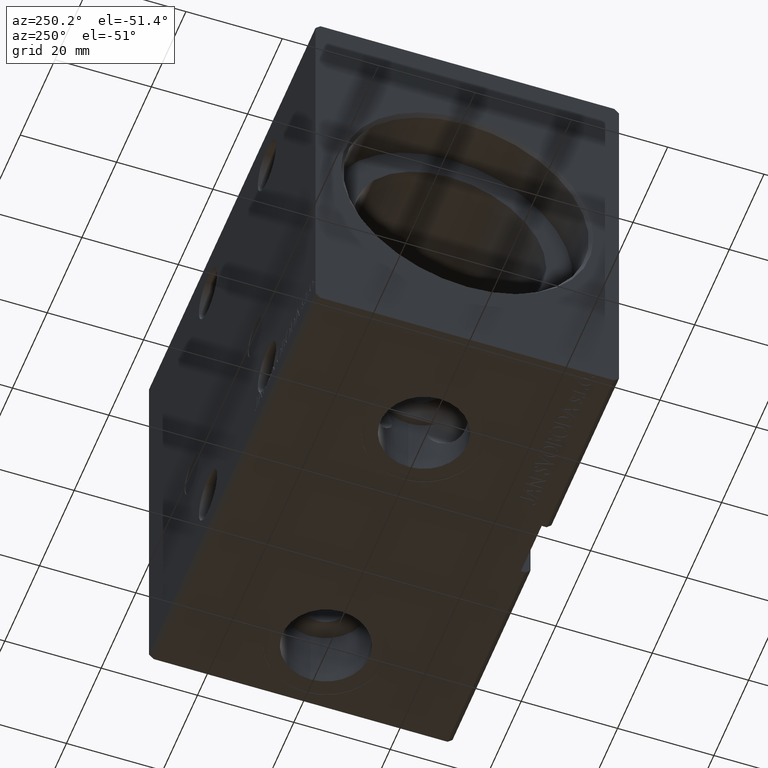
[diagram: clean part render]
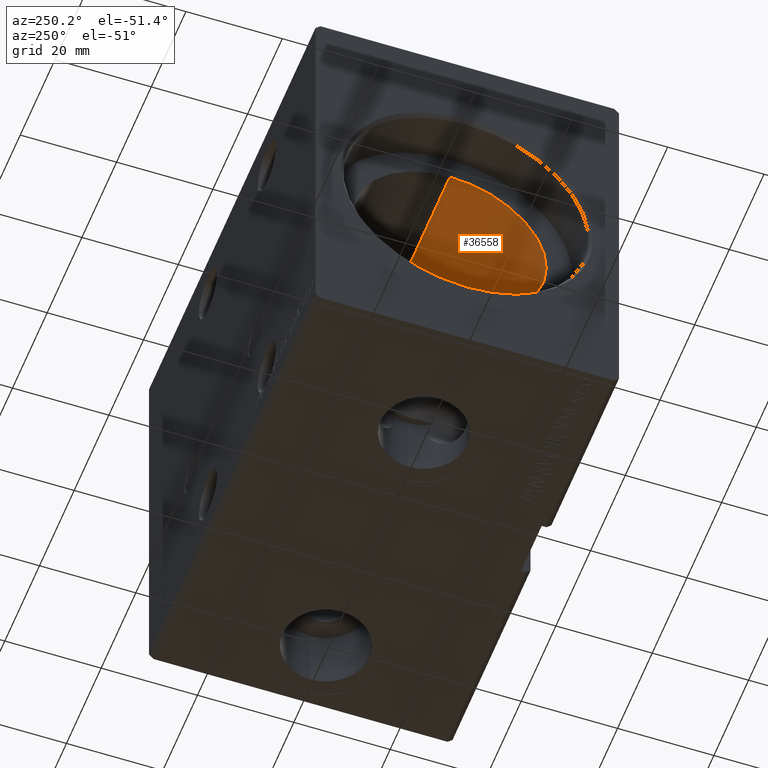
[diagram: same view with one face highlighted and labeled with its STEP entity id]
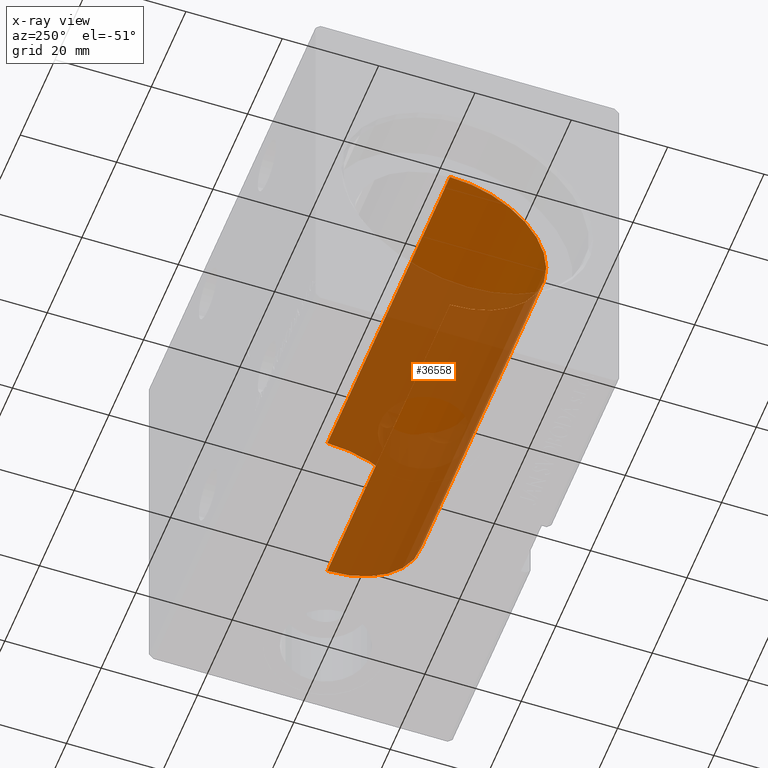
[diagram: x-ray of the same camera — body ghosted, the highlighted face saturated]
A machine part, auxiliary view. The second image highlights one B-rep face of the part: STEP entity #36558.
The next image is the same camera in x-ray: the body ghosted, the highlighted face saturated — about 72% of this face is hidden behind the body in this view.
In plain terms, the highlighted cylindrical surface (partial cylindrical patch) has radius 20 mm, axis along (-1, -0, -0).
Its self-contained STEP definition (entity closure, byte-faithful):
#545 = ORIENTED_EDGE ( 'NONE', *, *, #6763, .F. ) ;
#1203 = VERTEX_POINT ( 'NONE', #35179 ) ;
#1524 = CARTESIAN_POINT ( 'NONE',  ( 80.70000000000000284, 2.449293598294706513E-15, -20.00000000000000000 ) ) ;
#2459 = VECTOR ( 'NONE', #15867, 1000.000000000000000 ) ;
#2948 = CIRCLE ( 'NONE', #19551, 20.00000000000000000 ) ;
#3028 = LINE ( 'NONE', #3233, #2459 ) ;
#3233 = CARTESIAN_POINT ( 'NONE',  ( 80.70000000000000284, 2.449293598294706513E-15, -20.00000000000000000 ) ) ;
#3381 = EDGE_CURVE ( 'NONE', #1203, #31646, #2948, .T. ) ;
#5255 = DIRECTION ( 'NONE',  ( -1.000000000000000000, -0.000000000000000000, -0.000000000000000000 ) ) ;
#6763 = EDGE_CURVE ( 'NONE', #25948, #31646, #11662, .T. ) ;
#6978 = ORIENTED_EDGE ( 'NONE', *, *, #12252, .T. ) ;
#9680 = DIRECTION ( 'NONE',  ( 0.000000000000000000, 0.000000000000000000, 1.000000000000000000 ) ) ;
#10487 = DIRECTION ( 'NONE',  ( 0.000000000000000000, 0.000000000000000000, 1.000000000000000000 ) ) ;
#10922 = AXIS2_PLACEMENT_3D ( 'NONE', #11869, #5255, #10487 ) ;
#11662 = LINE ( 'NONE', #36711, #36035 ) ;
#11869 = CARTESIAN_POINT ( 'NONE',  ( 80.70000000000000284, 0.000000000000000000, 0.000000000000000000 ) ) ;
#12252 = EDGE_CURVE ( 'NONE', #35711, #1203, #3028, .T. ) ;
#13469 = ORIENTED_EDGE ( 'NONE', *, *, #3381, .T. ) ;
#15771 = AXIS2_PLACEMENT_3D ( 'NONE', #25139, #22034, #19141 ) ;
#15867 = DIRECTION ( 'NONE',  ( -1.000000000000000000, -0.000000000000000000, -0.000000000000000000 ) ) ;
#15992 = EDGE_CURVE ( 'NONE', #35711, #25948, #32951, .T. ) ;
#16907 = CYLINDRICAL_SURFACE ( 'NONE', #10922, 20.00000000000000000 ) ;
#17673 = DIRECTION ( 'NONE',  ( -1.000000000000000000, -0.000000000000000000, -0.000000000000000000 ) ) ;
#19141 = DIRECTION ( 'NONE',  ( 0.000000000000000000, 0.000000000000000000, 1.000000000000000000 ) ) ;
#19551 = AXIS2_PLACEMENT_3D ( 'NONE', #40534, #28289, #9680 ) ;
#22034 = DIRECTION ( 'NONE',  ( -1.000000000000000000, 0.000000000000000000, 0.000000000000000000 ) ) ;
#23328 = EDGE_LOOP ( 'NONE', ( #24553, #6978, #13469, #545 ) ) ;
#24553 = ORIENTED_EDGE ( 'NONE', *, *, #15992, .F. ) ;
#25139 = CARTESIAN_POINT ( 'NONE',  ( 80.70000000000000284, 0.000000000000000000, 0.000000000000000000 ) ) ;
#25169 = CARTESIAN_POINT ( 'NONE',  ( 9.999999999999994671, 0.000000000000000000, 20.00000000000000000 ) ) ;
#25948 = VERTEX_POINT ( 'NONE', #38887 ) ;
#28289 = DIRECTION ( 'NONE',  ( -1.000000000000000000, 0.000000000000000000, 0.000000000000000000 ) ) ;
#31646 = VERTEX_POINT ( 'NONE', #25169 ) ;
#32424 = FACE_OUTER_BOUND ( 'NONE', #23328, .T. ) ;
#32951 = CIRCLE ( 'NONE', #15771, 20.00000000000000000 ) ;
#35179 = CARTESIAN_POINT ( 'NONE',  ( 9.999999999999994671, 2.449293598294706513E-15, -20.00000000000000000 ) ) ;
#35711 = VERTEX_POINT ( 'NONE', #1524 ) ;
#36035 = VECTOR ( 'NONE', #17673, 1000.000000000000000 ) ;
#36558 = ADVANCED_FACE ( 'NONE', ( #32424 ), #16907, .F. ) ;
#36711 = CARTESIAN_POINT ( 'NONE',  ( 80.70000000000000284, 0.000000000000000000, 20.00000000000000000 ) ) ;
#38887 = CARTESIAN_POINT ( 'NONE',  ( 80.70000000000000284, 0.000000000000000000, 20.00000000000000000 ) ) ;
#40534 = CARTESIAN_POINT ( 'NONE',  ( 9.999999999999994671, 0.000000000000000000, 0.000000000000000000 ) ) ;